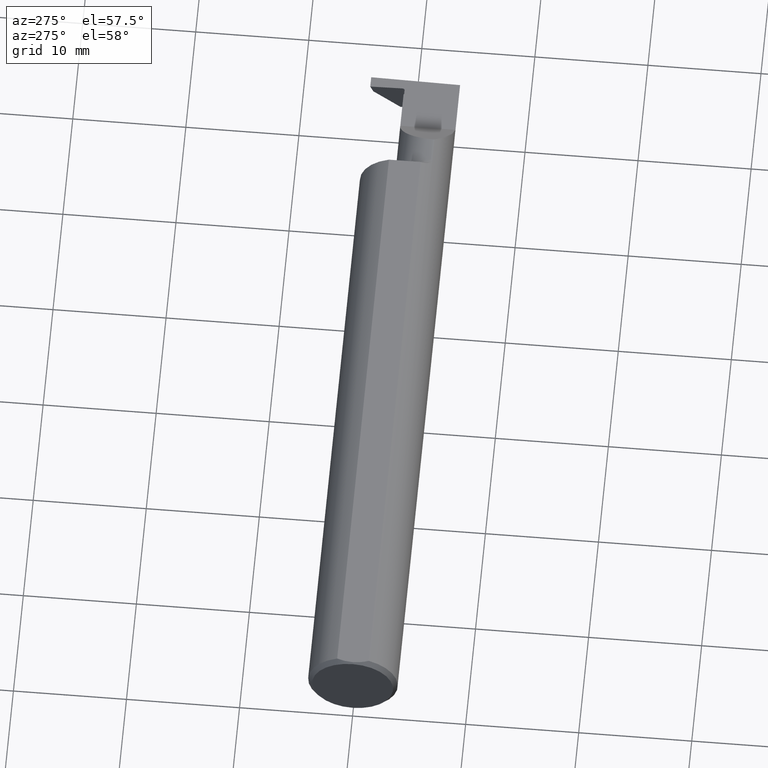
[diagram: clean part render]
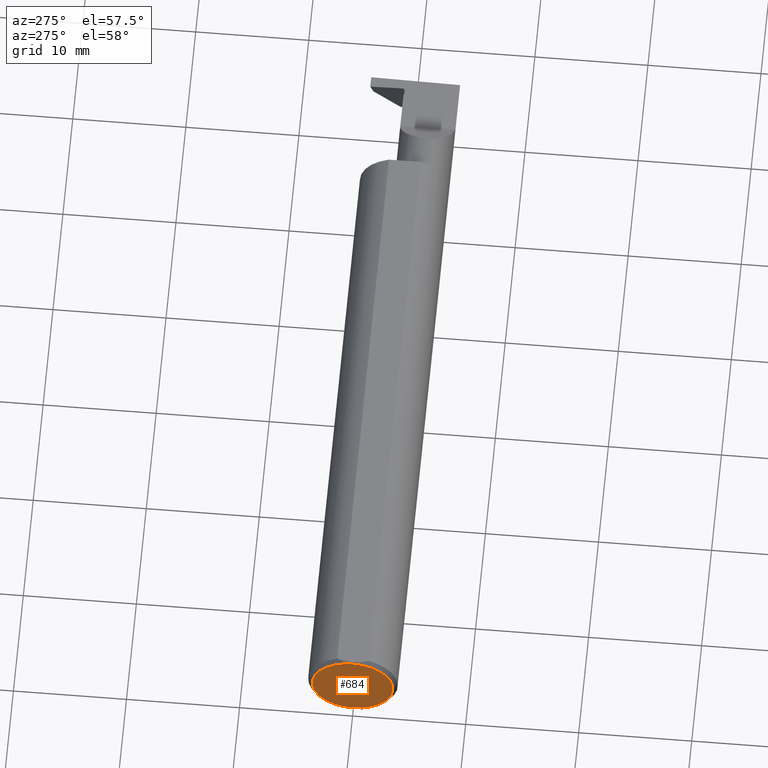
[diagram: same view with one face highlighted and labeled with its STEP entity id]
A machine part, auxiliary view. The second image highlights one B-rep face of the part: STEP entity #684.
In plain terms, the highlighted planar face has unit normal (1, 0, 0).
Its self-contained STEP definition (entity closure, byte-faithful):
#50 = CIRCLE ( 'NONE', #896, 0.1410999999999999754 ) ;
#113 = CARTESIAN_POINT ( 'NONE',  ( 0.000000000000000000, 0.000000000000000000, -0.1410999999999999754 ) ) ;
#148 = FACE_OUTER_BOUND ( 'NONE', #176, .T. ) ;
#160 = CARTESIAN_POINT ( 'NONE',  ( 0.000000000000000000, 0.000000000000000000, 0.000000000000000000 ) ) ;
#176 = EDGE_LOOP ( 'NONE', ( #994, #845 ) ) ;
#215 = DIRECTION ( 'NONE',  ( 1.000000000000000000, 0.000000000000000000, 0.000000000000000000 ) ) ;
#220 = AXIS2_PLACEMENT_3D ( 'NONE', #160, #215, #976 ) ;
#258 = AXIS2_PLACEMENT_3D ( 'NONE', #1015, #580, #753 ) ;
#259 = CARTESIAN_POINT ( 'NONE',  ( 0.000000000000000000, 0.000000000000000000, 0.000000000000000000 ) ) ;
#339 = VERTEX_POINT ( 'NONE', #113 ) ;
#380 = VERTEX_POINT ( 'NONE', #782 ) ;
#406 = PLANE ( 'NONE',  #220 ) ;
#434 = CIRCLE ( 'NONE', #258, 0.1410999999999999754 ) ;
#563 = EDGE_CURVE ( 'NONE', #339, #380, #50, .T. ) ;
#580 = DIRECTION ( 'NONE',  ( -1.000000000000000000, -0.000000000000000000, -0.000000000000000000 ) ) ;
#582 = DIRECTION ( 'NONE',  ( -1.000000000000000000, -0.000000000000000000, -0.000000000000000000 ) ) ;
#684 = ADVANCED_FACE ( 'NONE', ( #148 ), #406, .F. ) ;
#753 = DIRECTION ( 'NONE',  ( 0.000000000000000000, 0.000000000000000000, 1.000000000000000000 ) ) ;
#782 = CARTESIAN_POINT ( 'NONE',  ( 0.000000000000000000, 1.819825143532966472E-17, 0.1410999999999999754 ) ) ;
#810 = EDGE_CURVE ( 'NONE', #380, #339, #434, .T. ) ;
#845 = ORIENTED_EDGE ( 'NONE', *, *, #810, .T. ) ;
#896 = AXIS2_PLACEMENT_3D ( 'NONE', #259, #582, #1090 ) ;
#976 = DIRECTION ( 'NONE',  ( 0.000000000000000000, 0.000000000000000000, -1.000000000000000000 ) ) ;
#994 = ORIENTED_EDGE ( 'NONE', *, *, #563, .T. ) ;
#1015 = CARTESIAN_POINT ( 'NONE',  ( 0.000000000000000000, 0.000000000000000000, 0.000000000000000000 ) ) ;
#1090 = DIRECTION ( 'NONE',  ( 0.000000000000000000, 0.000000000000000000, 1.000000000000000000 ) ) ;